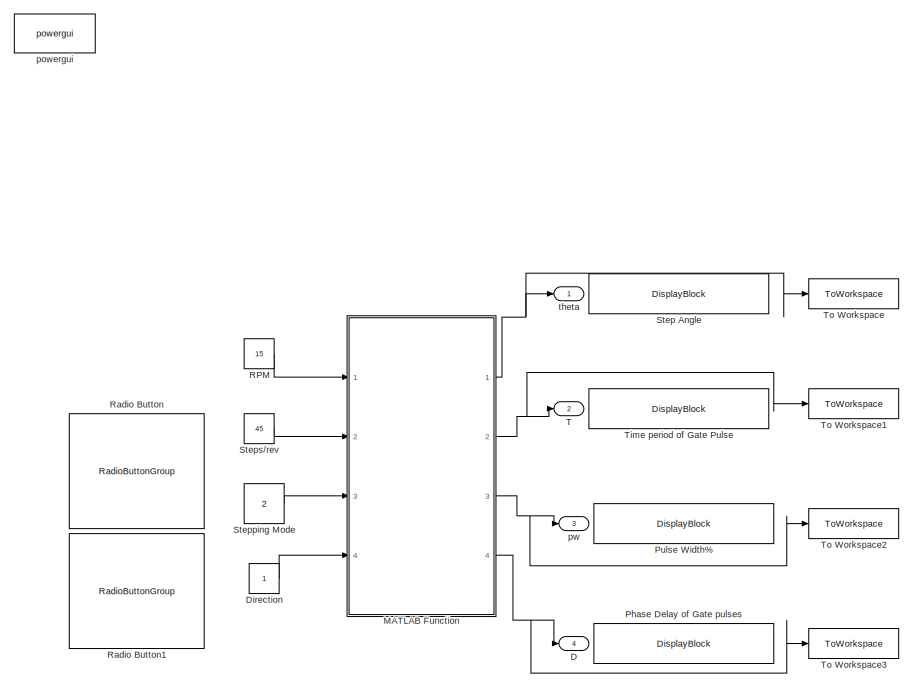
[diagram: root canvas - part 1/2, left side, full height]
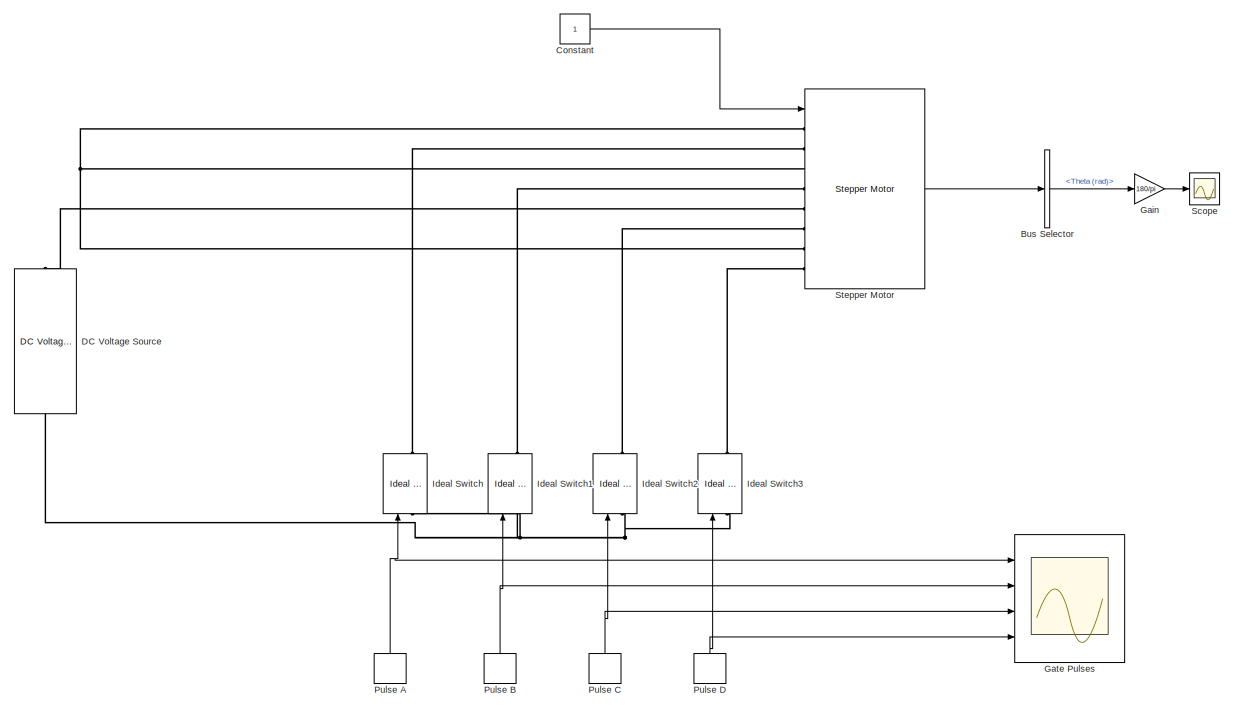
[diagram: root canvas - part 2/2, right side, full height]
MODEL slx_244a5b57483c
KIND model
CONFIG AbsTol = auto
CONFIG EnableMultiTasking = off
CONFIG FixedStep = auto
CONFIG MaxStep = auto
CONFIG MinStep = auto
CONFIG RelTol = 1e-3
CONFIG SampleTimeConstraint = Unconstrained
CONFIG SolverName = VariableStepAuto
CONFIG StartTime = 0.0
CONFIG StopTime = 20
BLOCK [BusSelector] Bus Selector
  OutputSignals = Theta (rad)
  Ports = [1, 1]
BLOCK [Constant] Constant
BLOCK [Outport] D
  Port = 4
BLOCK [Reference] DC Voltage Source  REF=spsDCVoltageSourceLib/DC Voltage Source
  Ports = [0, 0, 0, 0, 0, 1, 1]
  SourceBlock = spsDCVoltageSourceLib/DC Voltage Source
  SourceProductBaseCode = PS
  SourceType = DC Voltage Source
BLOCK [Constant] Direction
BLOCK [Gain] Gain
  Gain = 180/pi
BLOCK [Scope] Gate Pulses
  Floating = off
  NumInputPorts = 4
  Ports = [4]
  ScopeSpecificationString = Simulink.scopes.TimeScopeBlockCfg('CurrentConfiguration', extmgr.ConfigurationSet(extmgr.Configuration('Core','General UI',true,'FigureColor',[1 1 1],'DisplayFullSourceName',true),extmgr.Configuration('Core','Source UI',true),extmgr.Configuration('Sources','WiredSimulink',true,'DataLoggingVariableName','ScopeData1'),extmgr.Configuration('Visuals','Time Domain',true,'SerializedDisplays',{struct('Mi...<+4438ch>
BLOCK [Reference] Ideal Switch  REF=spsIdealSwitchLib/Ideal Switch
  NameLocation = right
  Ports = [1, 1, 0, 0, 0, 1, 1]
  SourceBlock = spsIdealSwitchLib/Ideal Switch
  SourceProductBaseCode = PS
  SourceType = Ideal Switch
BLOCK [Reference] Ideal Switch1  REF=spsIdealSwitchLib/Ideal Switch
  NameLocation = right
  Ports = [1, 1, 0, 0, 0, 1, 1]
  SourceBlock = spsIdealSwitchLib/Ideal Switch
  SourceProductBaseCode = PS
  SourceType = Ideal Switch
BLOCK [Reference] Ideal Switch2  REF=spsIdealSwitchLib/Ideal Switch
  NameLocation = right
  Ports = [1, 1, 0, 0, 0, 1, 1]
  SourceBlock = spsIdealSwitchLib/Ideal Switch
  SourceProductBaseCode = PS
  SourceType = Ideal Switch
BLOCK [Reference] Ideal Switch3  REF=spsIdealSwitchLib/Ideal Switch
  NameLocation = right
  Ports = [1, 1, 0, 0, 0, 1, 1]
  SourceBlock = spsIdealSwitchLib/Ideal Switch
  SourceProductBaseCode = PS
  SourceType = Ideal Switch
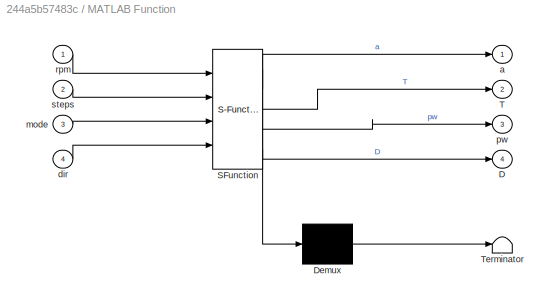
BLOCK [SubSystem] MATLAB Function
  ErrorFcn = Stateflow.Translate.translate
  PermitHierarchicalResolution = ExplicitOnly
  Ports = [4, 4]
  RequestExecContextInheritance = off
  SFBlockType = MATLAB Function
  TreatAsAtomicUnit = on
BLOCK [Demux] MATLAB Function/ Demux 
  Outputs = 1
  Ports = [1, 1]
BLOCK [S-Function] MATLAB Function/ SFunction 
  EnableBusSupport = on
  FunctionName = sf_sfun
  PortCounts = [4 5]
  Ports = [4, 5]
  SFcnIsStateOwnerBlock = off
  SFunctionDeploymentMode = off
  Tag = Stateflow S-Function 1
BLOCK [Terminator] MATLAB Function/ Terminator 
BLOCK [Outport] MATLAB Function/D
  Port = 4
BLOCK [Outport] MATLAB Function/T
  Port = 2
BLOCK [Outport] MATLAB Function/a
BLOCK [Inport] MATLAB Function/dir
  Port = 4
BLOCK [Inport] MATLAB Function/mode
  Port = 3
BLOCK [Outport] MATLAB Function/pw
  Port = 3
BLOCK [Inport] MATLAB Function/rpm
BLOCK [Inport] MATLAB Function/steps
  Port = 2
BLOCK [DisplayBlock] Phase Delay of Gate pulses
  LabelPosition = Hide
  Transparency = 1
BLOCK [DiscretePulseGenerator] Pulse A
  Amplitude = 5
  Period = out.T.signals.values(1,1)
  PhaseDelay = out.D.signals.values(1,1,1)
  Ports = [0, 1]
  PulseType = Time based
  PulseWidth = out.pw.signals.values(1,1)
BLOCK [DiscretePulseGenerator] Pulse B
  Amplitude = 5
  Period = out.T.signals.values(1,1)
  PhaseDelay = out.D.signals.values(1,2,1)
  Ports = [0, 1]
  PulseType = Time based
  PulseWidth = out.pw.signals.values(1,1)
BLOCK [DiscretePulseGenerator] Pulse C
  Amplitude = 5
  Period = out.T.signals.values(1,1)
  PhaseDelay = out.D.signals.values(1,3,1)
  Ports = [0, 1]
  PulseType = Time based
  PulseWidth = out.pw.signals.values(1,1)
BLOCK [DiscretePulseGenerator] Pulse D
  Amplitude = 5
  Period = out.T.signals.values(1,1)
  PhaseDelay = out.D.signals.values(1,4,1)
  Ports = [0, 1]
  PulseType = Time based
  PulseWidth = out.pw.signals.values(1,1)
BLOCK [DisplayBlock] Pulse Width%
  LabelPosition = Hide
  Transparency = 1
BLOCK [Constant] RPM
  Value = 15
BLOCK [RadioButtonGroup] Radio Button
  ButtonGroupName = Group
  SelectedLabel = Half Stepping
BLOCK [RadioButtonGroup] Radio Button1
  ButtonGroupName = Group
  SelectedLabel = CW
BLOCK [Scope] Scope
  Floating = off
  NumInputPorts = 1
  Ports = [1]
  ScopeSpecificationString = Simulink.scopes.TimeScopeBlockCfg('CurrentConfiguration', extmgr.ConfigurationSet(extmgr.Configuration('Core','General UI',true),extmgr.Configuration('Core','Source UI',true),extmgr.Configuration('Sources','WiredSimulink',true,'DataLoggingVariableName','ScopeData2'),extmgr.Configuration('Visuals','Time Domain',true,'SerializedDisplays',{struct('MinYLimReal','33.62335','MaxYLimReal','239.55375','YL...<+1473ch>
BLOCK [DisplayBlock] Step Angle
  LabelPosition = Hide
  Transparency = 1
BLOCK [Reference] Stepper Motor  REF=spsStepperMotorLib/Stepper Motor
  Ports = [1, 1, 0, 0, 0, 8]
  SourceBlock = spsStepperMotorLib/Stepper Motor
  SourceProductBaseCode = PS
  SourceType = Stepper Motor
BLOCK [Constant] Stepping Mode
  SampleTime = -1
  Value = 2
BLOCK [Constant] Steps//rev
  Value = 45
BLOCK [Outport] T
  Port = 2
BLOCK [DisplayBlock] Time period of Gate Pulse
  LabelPosition = Hide
  Transparency = 1
BLOCK [ToWorkspace] To Workspace
  FixptAsFi = on
  MaxDataPoints = inf
  Ports = [1]
  SampleTime = -1
  Save2DSignal = 2-D array (concatenate along first dimension)
  SaveFormat = Structure
  VariableName = a
BLOCK [ToWorkspace] To Workspace1
  FixptAsFi = on
  MaxDataPoints = inf
  Ports = [1]
  SampleTime = -1
  Save2DSignal = 2-D array (concatenate along first dimension)
  SaveFormat = Structure
  VariableName = T
BLOCK [ToWorkspace] To Workspace2
  FixptAsFi = on
  MaxDataPoints = inf
  Ports = [1]
  SampleTime = -1
  Save2DSignal = 2-D array (concatenate along first dimension)
  SaveFormat = Structure
  VariableName = pw
BLOCK [ToWorkspace] To Workspace3
  FixptAsFi = on
  MaxDataPoints = inf
  Ports = [1]
  SampleTime = -1
  Save2DSignal = 2-D array (concatenate along first dimension)
  SaveFormat = Structure
  VariableName = D
BLOCK [Reference] powergui  REF=spspowerguiLib/powergui
  Ports = []
  Priority = 1
  SourceBlock = spspowerguiLib/powergui
  SourceProductBaseCode = PS
  SourceType = PSB option menu block
BLOCK [Outport] pw
  Port = 3
BLOCK [Outport] theta
LINE Bus Selector:1 -> Gain:1
LINE Constant:1 -> Stepper Motor:1
LINE Direction:1 -> MATLAB Function:4
LINE Gain:1 -> Scope:1
NET MATLAB Function:1 -> To Workspace:1, theta:1
NET MATLAB Function:2 -> T:1, To Workspace1:1
NET MATLAB Function:3 -> To Workspace2:1, pw:1
NET MATLAB Function:4 -> D:1, To Workspace3:1
NET Pulse A:1 -> Gate Pulses:1, Ideal Switch:1
NET Pulse B:1 -> Gate Pulses:2, Ideal Switch1:1
NET Pulse C:1 -> Gate Pulses:3, Ideal Switch2:1
NET Pulse D:1 -> Gate Pulses:4, Ideal Switch3:1
LINE RPM:1 -> MATLAB Function:1
LINE Stepper Motor:1 -> Bus Selector:1
LINE Stepping Mode:1 -> MATLAB Function:3
LINE Steps//rev:1 -> MATLAB Function:2
PNET net1: DC Voltage Source:LConn1 -- Ideal Switch1:LConn1 -- Ideal Switch2:LConn1 -- Ideal Switch3:LConn1 -- Ideal Switch:LConn1
PNET net2: DC Voltage Source:RConn1 -- Stepper Motor:LConn1 -- Stepper Motor:LConn3 -- Stepper Motor:LConn5 -- Stepper Motor:LConn7
PLINE Ideal Switch1:RConn1 -- Stepper Motor:LConn4
PLINE Ideal Switch2:RConn1 -- Stepper Motor:LConn6
PLINE Ideal Switch3:RConn1 -- Stepper Motor:LConn8
PLINE Ideal Switch:RConn1 -- Stepper Motor:LConn2
note: NET lines group one-source signal fan-out (src -> all destinations, sorted); 1:1 wires keep LINE; PNET lines group multi-terminal physical nets as a canonical sorted terminal list (undirected conserving connections); 2-terminal nets keep the pairwise PLINE form
CHART MATLAB Function states=1 transitions=1
  STATE_LABEL 'eML_blk_kernel()'
  STATE_LABEL 'SCRIPT:\nfunction [a,T, pw, D] = control (rpm, steps, mode, dir)\n\nD = zeros(1,4);\nw = 0;\n\nT = 60/rpm;\n\n\nif mode == 0\n    w = 25;\nend\nif mode == 1\n    w = 50;\nend\nif mode == 2\n    w = 37.5;\nend\n\n\nif dir == 1\n    D(2) = T/4;\n    D(3) = T/2;\n    D(4) = -T/4;\n\nelse \n    D(2) = -T/4;\n    D(3) = T/2;\n    D(4) = T/4;\nend\n\na = 360/steps;\nT = 60/rpm;\npw = w;\nend'
CHART  states=0 transitions=0
